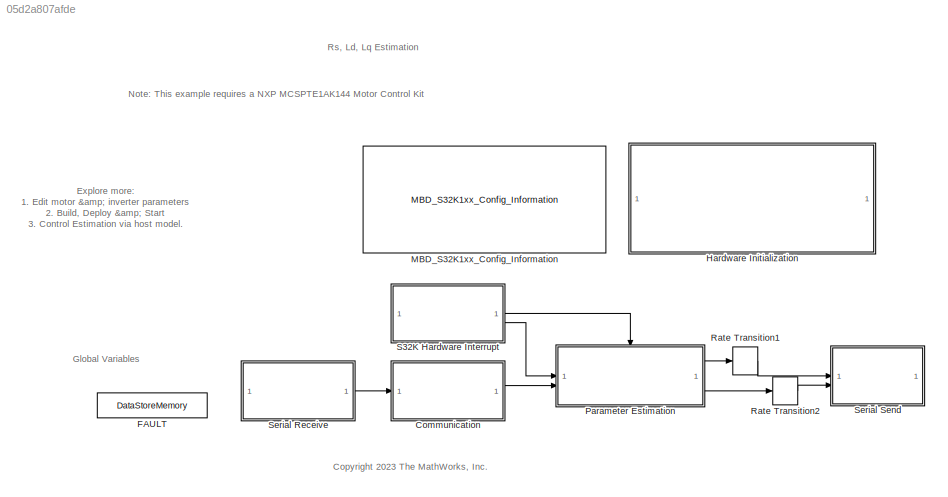
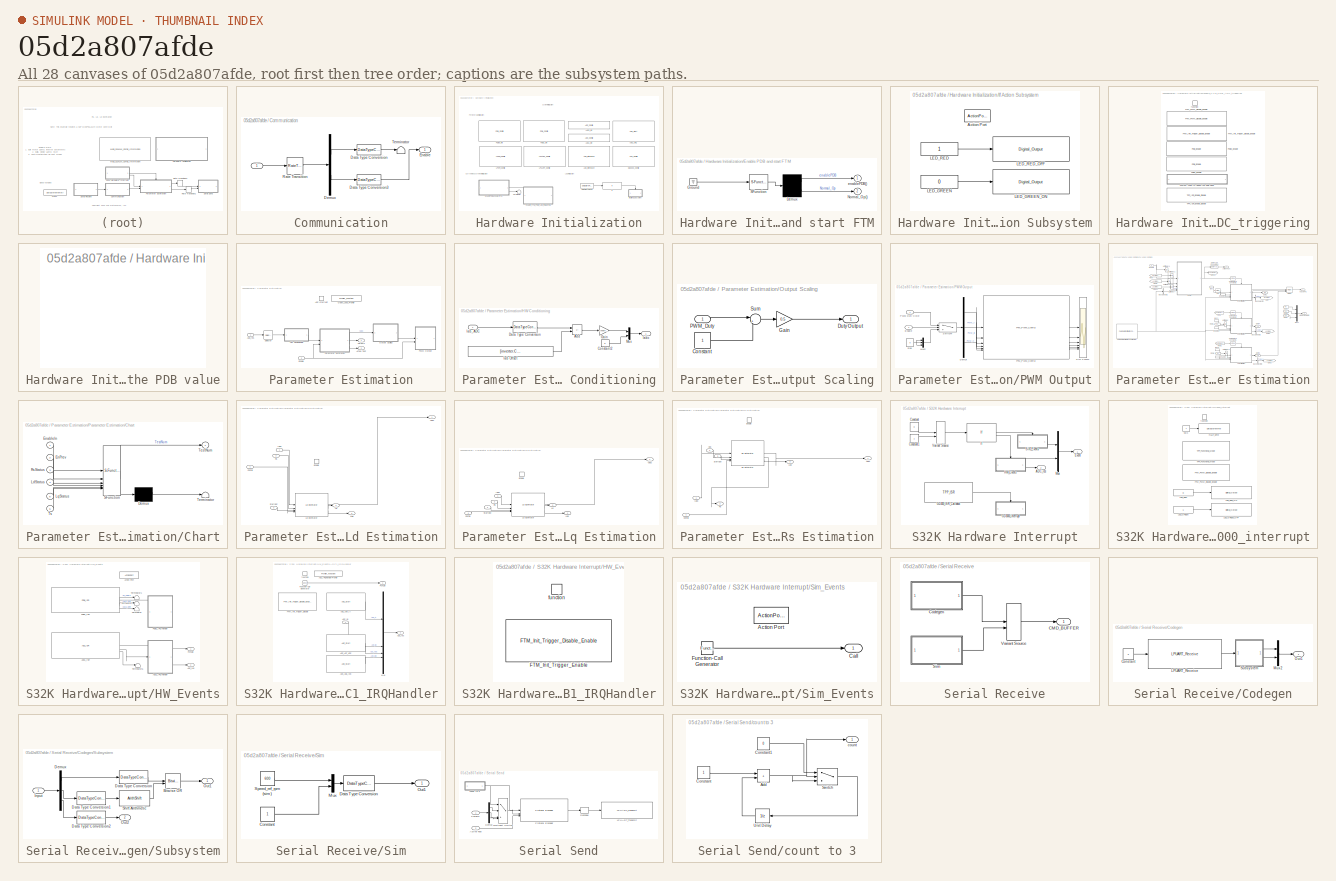
[diagram: thumbnail index - all 28 canvases of the model, root first then tree order]
MODEL slx_05d2a807afde
KIND model
CONFIG AbsTol = auto
CONFIG EnableMultiTasking = on
CONFIG FixedStep = auto
CONFIG InitFcn = mbd_s32k_consistency_checks(bdroot(gcs));
CONFIG MaxStep = auto
CONFIG MinStep = auto
CONFIG PreLoadFcn = mcb_pmsm_param_est_MCSPTE1AK144_data;
CONFIG RelTol = 1e-3
CONFIG SampleTimeConstraint = Unconstrained
CONFIG SolverName = FixedStepDiscrete
CONFIG StartTime = 0.0
CONFIG StopTime = 6
BLOCK [SubSystem] Communication
BLOCK [Inport] Communication/ 
BLOCK [DataTypeConversion] Communication/Data Type Conversion
  ConvertRealWorld = Stored Integer (SI)
  OutDataTypeStr = int16
  RndMeth = Simplest
  SaturateOnIntegerOverflow = off
BLOCK [DataTypeConversion] Communication/Data Type Conversion3
  OutDataTypeStr = boolean
  RndMeth = Simplest
  SaturateOnIntegerOverflow = off
BLOCK [Demux] Communication/Demux
  Outputs = 2
BLOCK [Outport] Communication/Enable
  VectorParamsAs1DForOutWhenUnconnected = off
BLOCK [RateTransition] Communication/Rate Transition
  Deterministic = off
  InitialCondition = [0 0]
  OutPortSampleTime = Ts
BLOCK [Terminator] Communication/Terminator
BLOCK [DataStoreMemory] FAULT
  DataStoreName = FAULT
  OutDataTypeStr = boolean
  ShowAdditionalParam = off
  WriteAfterReadMsg = warning
  WriteAfterWriteMsg = warning
BLOCK [SubSystem] Hardware Initialization
  Priority = 2
BLOCK [Reference] Hardware Initialization/ADC0_Init  REF=mbd_s32k1xx_ec_toolbox/Motor Control Blocks/ADC Blocks/ADC_Config
  Priority = 3
  SourceBlock = mbd_s32k1xx_ec_toolbox/Motor Control Blocks/ADC Blocks/ADC_Config
  SourceType = adc_s32k_config_block
BLOCK [Reference] Hardware Initialization/ADC1_IRQ  REF=mbd_s32k1xx_ec_toolbox/Motor Control Blocks/ADC Blocks/ADC_Start
  Priority = 5
  SourceBlock = mbd_s32k1xx_ec_toolbox/Motor Control Blocks/ADC Blocks/ADC_Start
  SourceType = adc_s32k_start_block
BLOCK [Reference] Hardware Initialization/ADC1_Init  REF=mbd_s32k1xx_ec_toolbox/Motor Control Blocks/ADC Blocks/ADC_Config
  Priority = 4
  SourceBlock = mbd_s32k1xx_ec_toolbox/Motor Control Blocks/ADC Blocks/ADC_Config
  SourceType = adc_s32k_config_block
BLOCK [Reference] Hardware Initialization/ADC_Interleave  REF=mbd_s32k1xx_ec_toolbox/Motor Control Blocks/ADC Blocks/ADC_Interleave
  SourceBlock = mbd_s32k1xx_ec_toolbox/Motor Control Blocks/ADC Blocks/ADC_Interleave
  SourceType = adc_s32k_interleave_block
BLOCK [DataStoreRead] Hardware Initialization/Data Store Read
  DataStoreName = FAULT
  IndexOptions = Index vector (dialog)
  Indices = 1
  OutputSizes = 1
BLOCK [SubSystem] Hardware Initialization/Enable PDB and start FTM
  ErrorFcn = Stateflow.Translate.translate
  PermitHierarchicalResolution = ExplicitOnly
  SFBlockType = Chart
  TreatAsAtomicUnit = on
BLOCK [Demux] Hardware Initialization/Enable PDB and start FTM/ Demux 
  Outputs = 2
BLOCK [Ground] Hardware Initialization/Enable PDB and start FTM/ Ground 
BLOCK [S-Function] Hardware Initialization/Enable PDB and start FTM/ SFunction 
  EnableBusSupport = on
  FunctionName = sf_sfun
  PortCounts = [1 1]
  SFcnIsStateOwnerBlock = off
  SFunctionDeploymentMode = off
  Tag = Stateflow S-Function 1
BLOCK [Outport] Hardware Initialization/Enable PDB and start FTM/Normal_Op()
  Port = 2
  VectorParamsAs1DForOutWhenUnconnected = off
BLOCK [Outport] Hardware Initialization/Enable PDB and start FTM/enablePDB()
  VectorParamsAs1DForOutWhenUnconnected = off
BLOCK [Reference] Hardware Initialization/GD3000_Config  REF=mbd_msd_ec_toolbox/TPP/TPP_Config
  Priority = 1
  SourceBlock = mbd_msd_ec_toolbox/TPP/TPP_Config
  SourceType = tpp_s32k_config
BLOCK [If] Hardware Initialization/If
  IfExpression = u1 == 0
  ShowElse = off
BLOCK [SubSystem] Hardware Initialization/If Action Subsystem
  TreatAsAtomicUnit = on
BLOCK [ActionPort] Hardware Initialization/If Action Subsystem/Action Port
  ActionPortLabel = if(u1 == 0)
BLOCK [Constant] Hardware Initialization/If Action Subsystem/LED_GREEN
  OutDataTypeStr = boolean
  SampleTime = -1
  Value = 0
BLOCK [Reference] Hardware Initialization/If Action Subsystem/LED_GREEN_ON  REF=mbd_s32k1xx_ec_toolbox/GPIO Blocks/Digital_Output
  SourceBlock = mbd_s32k1xx_ec_toolbox/GPIO Blocks/Digital_Output
  SourceType = gpio_s32k_output
BLOCK [Constant] Hardware Initialization/If Action Subsystem/LED_RED
  OutDataTypeStr = boolean
  SampleTime = -1
BLOCK [Reference] Hardware Initialization/If Action Subsystem/LED_RED_OFF  REF=mbd_s32k1xx_ec_toolbox/GPIO Blocks/Digital_Output
  SourceBlock = mbd_s32k1xx_ec_toolbox/GPIO Blocks/Digital_Output
  SourceType = gpio_s32k_output
BLOCK [Reference] Hardware Initialization/LPSPI_Config   REF=mbd_s32k1xx_ec_toolbox/Communication Blocks/SPI Blocks/LPSPI_Config

  SourceBlock = mbd_s32k1xx_ec_toolbox/Communication Blocks/SPI Blocks/LPSPI_Config
  SourceType = lpspi_s32k_config
BLOCK [Reference] Hardware Initialization/LPUART_Config  REF=mbd_s32k1xx_ec_toolbox/Communication Blocks/UART Blocks/LPUART_Config
  Priority = 1
  SourceBlock = mbd_s32k1xx_ec_toolbox/Communication Blocks/UART Blocks/LPUART_Config
  SourceType = lpuart_s32k_config
BLOCK [Reference] Hardware Initialization/PDB0_Init  REF=mbd_s32k1xx_ec_toolbox/Motor Control Blocks/PDB Blocks/PDB_Config
  Priority = 1
  SourceBlock = mbd_s32k1xx_ec_toolbox/Motor Control Blocks/PDB Blocks/PDB_Config
  SourceType = pdb_s32k_config_block
BLOCK [Reference] Hardware Initialization/PDB1_Init  REF=mbd_s32k1xx_ec_toolbox/Motor Control Blocks/PDB Blocks/PDB_Config
  Priority = 2
  SourceBlock = mbd_s32k1xx_ec_toolbox/Motor Control Blocks/PDB Blocks/PDB_Config
  SourceType = pdb_s32k_config_block
BLOCK [Terminator] Hardware Initialization/Terminator
BLOCK [SubSystem] Hardware Initialization/enable_FTM_PDB_ADC_triggering
  RTWSystemCode = Inline
  TreatAsAtomicUnit = on
BLOCK [SubSystem] Hardware Initialization/enable_FTM_PDB_ADC_triggering/Custom code to reload the PDB value
  CopyFcn = cccopyfcn(gcb)
  OpenFcn = ccopenfcn('System Outputs Function')
  Priority = 6
BLOCK [Reference] Hardware Initialization/enable_FTM_PDB_ADC_triggering/FTM_Init_Trigger_Disable_Enable  REF=mbd_s32k1xx_ec_toolbox/Motor Control Blocks/FTM Blocks/FTM_Init_Trigger_Disable_Enable
  Priority = 3
  SourceBlock = mbd_s32k1xx_ec_toolbox/Motor Control Blocks/FTM Blocks/FTM_Init_Trigger_Disable_Enable
  SourceType = FTM_s32k_init_disen
BLOCK [Reference] Hardware Initialization/enable_FTM_PDB_ADC_triggering/FTM_PWM_Disable_Enable  REF=mbd_s32k1xx_ec_toolbox/Motor Control Blocks/FTM Blocks/FTM_PWM_Disable_Enable
  Priority = 1
  SourceBlock = mbd_s32k1xx_ec_toolbox/Motor Control Blocks/FTM Blocks/FTM_PWM_Disable_Enable
  SourceType = FTM_s32k_pwm_disen
BLOCK [Reference] Hardware Initialization/enable_FTM_PDB_ADC_triggering/PDB0_Enable  REF=mbd_s32k1xx_ec_toolbox/Motor Control Blocks/PDB Blocks/PDB_Enable
  Priority = 4
  SourceBlock = mbd_s32k1xx_ec_toolbox/Motor Control Blocks/PDB Blocks/PDB_Enable
  SourceType = pdb_s32k_enable_block
BLOCK [Reference] Hardware Initialization/enable_FTM_PDB_ADC_triggering/PDB1_Enable  REF=mbd_s32k1xx_ec_toolbox/Motor Control Blocks/PDB Blocks/PDB_Enable
  Priority = 5
  SourceBlock = mbd_s32k1xx_ec_toolbox/Motor Control Blocks/PDB Blocks/PDB_Enable
  SourceType = pdb_s32k_enable_block
BLOCK [Reference] Hardware Initialization/enable_FTM_PDB_ADC_triggering/TPP_ISR_Enable_Disable  REF=mbd_msd_ec_toolbox/TPP/TPP_ISR_Enable_Disable
  Priority = 7
  SourceBlock = mbd_msd_ec_toolbox/TPP/TPP_ISR_Enable_Disable
  SourceType = tpp_s32k_int_en_dis
BLOCK [TriggerPort] Hardware Initialization/enable_FTM_PDB_ADC_triggering/function
  StatesWhenEnabling = held
  TriggerType = function-call
  VariantControl = (inherit)
BLOCK [Reference] MBD_S32K1xx_Config_Information  REF=mbd_s32k1xx_ec_toolbox/MBD_S32K1xx_Config_Information
  Priority = 1
  SourceBlock = mbd_s32k1xx_ec_toolbox/MBD_S32K1xx_Config_Information
  SourceType = MBDTBX_EC_S32K
BLOCK [SubSystem] Parameter Estimation
  RTWSystemCode = Nonreusable function
BLOCK [TriggerPort] Parameter Estimation/ADC Interrupt
  StatesWhenEnabling = held
  TriggerType = function-call
  VariantControl = Variant
BLOCK [Inport] Parameter Estimation/ADC_res
BLOCK [Outport] Parameter Estimation/Active Test
  Port = 2
BLOCK [Inport] Parameter Estimation/Enable
  Port = 2
BLOCK [SubSystem] Parameter Estimation/HW Conditioning
BLOCK [Sum] Parameter Estimation/HW Conditioning/Add
  IconShape = rectangular
  Inputs = +-
  OutDataTypeStr = Inherit: Same as first input
  RndMeth = Simplest
BLOCK [Constant] Parameter Estimation/HW Conditioning/Constant2
  OutDataTypeStr = single
  Value = 0
BLOCK [DataTypeConversion] Parameter Estimation/HW Conditioning/Data Type Conversion
  OutDataTypeStr = single
  RndMeth = Simplest
  SaturateOnIntegerOverflow = off
BLOCK [Gain] Parameter Estimation/HW Conditioning/Gain
  Gain = -inverter.ISenseMax/2048
  OutDataTypeStr = Inherit: Same as input
  RndMeth = Simplest
BLOCK [Constant] Parameter Estimation/HW Conditioning/Iab Offset
  OutDataTypeStr = int32
  Value = [inverter.CtSensAOffset inverter.CtSensBOffset]
BLOCK [Inport] Parameter Estimation/HW Conditioning/Iab_ADC
BLOCK [Outport] Parameter Estimation/HW Conditioning/Iabc
BLOCK [Mux] Parameter Estimation/HW Conditioning/Mux
  DisplayOption = bar
  Inputs = 2
BLOCK [Reference] Parameter Estimation/Open_Loop_Profiler  REF=mbd_s32k1xx_ec_toolbox/Utility Blocks/Profiler_Function
  SourceBlock = mbd_s32k1xx_ec_toolbox/Utility Blocks/Profiler_Function
  SourceType = profiler_s32k_func
BLOCK [SubSystem] Parameter Estimation/Output Scaling
BLOCK [Constant] Parameter Estimation/Output Scaling/Constant
  OutDataTypeStr = dataType
BLOCK [Outport] Parameter Estimation/Output Scaling/Duty Output
BLOCK [Gain] Parameter Estimation/Output Scaling/Gain
  Gain = 0.5
  OutDataTypeStr = Inherit: Same as input
  RndMeth = Simplest
BLOCK [Inport] Parameter Estimation/Output Scaling/PWM_Duty
BLOCK [Sum] Parameter Estimation/Output Scaling/Sum
  AccumDataTypeStr = Inherit: Same as first input
  Inputs = |++
  OutDataTypeStr = Inherit: Same as first input
  RndMeth = Simplest
BLOCK [SubSystem] Parameter Estimation/PWM Output
BLOCK [Demux] Parameter Estimation/PWM Output/Demux
  Outputs = 3
BLOCK [Inport] Parameter Estimation/PWM Output/Enable
  Port = 2
BLOCK [Reference] Parameter Estimation/PWM Output/FTM_PWM_Config  REF=mbd_s32k1xx_ec_toolbox/Motor Control Blocks/FTM Blocks/FTM_PWM_Config
  SourceBlock = mbd_s32k1xx_ec_toolbox/Motor Control Blocks/FTM Blocks/FTM_PWM_Config
  SourceType = FTM_s32k_pwm_config_block
BLOCK [Mux] Parameter Estimation/PWM Output/Mux2
  DisplayOption = bar
  Inputs = 3
BLOCK [Inport] Parameter Estimation/PWM Output/PWM Duty Cycle
BLOCK [Scope] Parameter Estimation/PWM Output/Sim PWMs
  Floating = off
  NumInputPorts = 6
  ScopeSpecificationString = Simulink.scopes.TimeScopeBlockCfg('CurrentConfiguration', extmgr.ConfigurationSet(extmgr.Configuration('Core','General UI',true),extmgr.Configuration('Core','Source UI',true),extmgr.Configuration('Sources','WiredSimulink',true,'DataLoggingVariableName','ScopeData6'),extmgr.Configuration('Visuals','Time Domain',true,'SerializedDisplays',{struct('MinYLimReal','-0.07187','MaxYLimReal','0.64687','YLab...<+1547ch>
BLOCK [Switch] Parameter Estimation/PWM Output/Switch4
  InputSameDT = off
  RndMeth = Simplest
  SaturateOnIntegerOverflow = off
  Threshold = 0.5
BLOCK [Constant] Parameter Estimation/PWM Output/stop
  OutDataTypeStr = dataType
  Value = 0
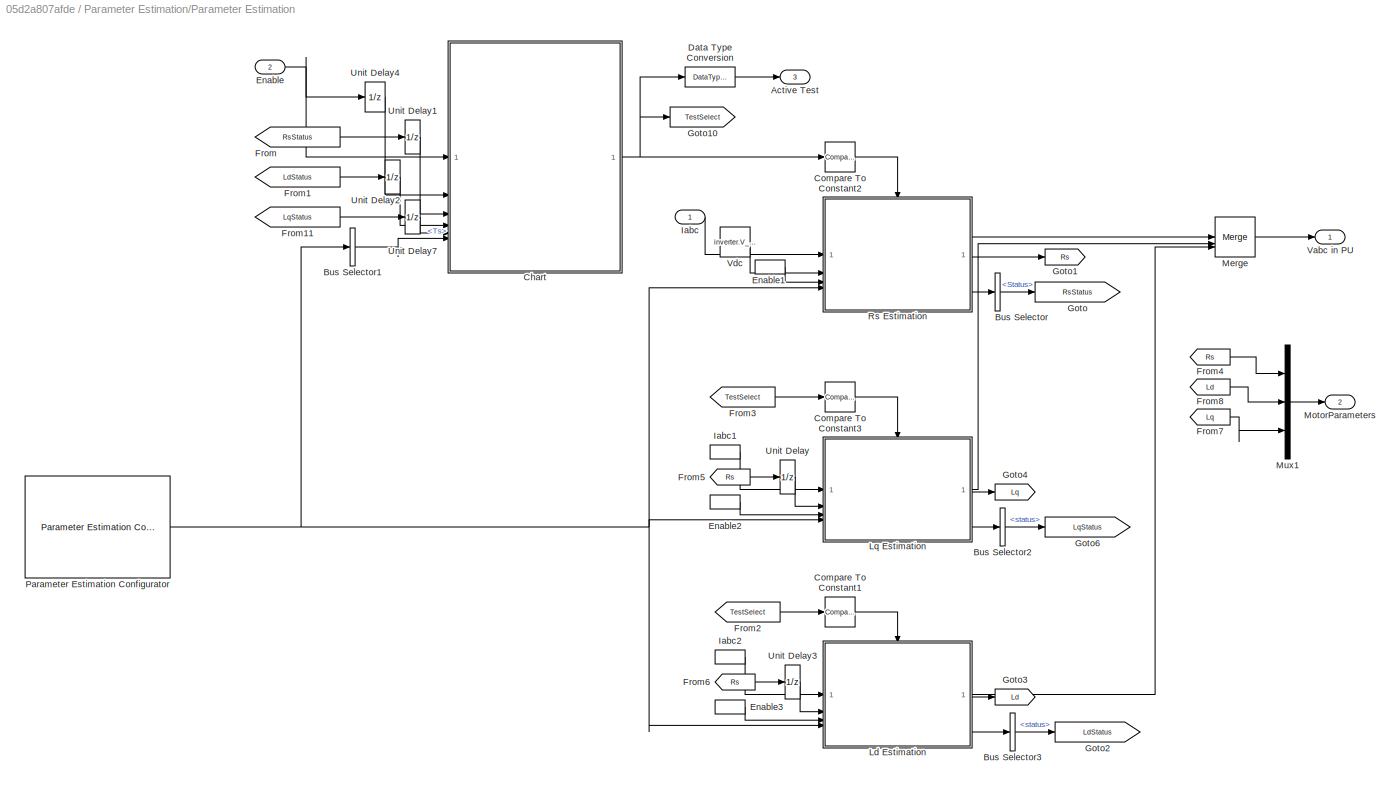
BLOCK [SubSystem] Parameter Estimation/Parameter Estimation
BLOCK [Outport] Parameter Estimation/Parameter Estimation/Active Test
  Port = 3
BLOCK [BusSelector] Parameter Estimation/Parameter Estimation/Bus Selector
  OutputSignals = Status
BLOCK [BusSelector] Parameter Estimation/Parameter Estimation/Bus Selector1
  OutputSignals = Ts
BLOCK [BusSelector] Parameter Estimation/Parameter Estimation/Bus Selector2
  OutputSignals = status
BLOCK [BusSelector] Parameter Estimation/Parameter Estimation/Bus Selector3
  OutputSignals = status
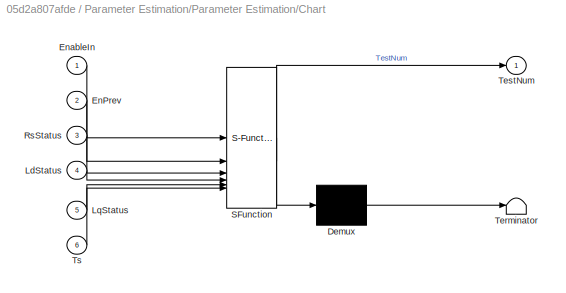
BLOCK [SubSystem] Parameter Estimation/Parameter Estimation/Chart
  ErrorFcn = Stateflow.Translate.translate
  PermitHierarchicalResolution = ExplicitOnly
  SFBlockType = Chart
  TreatAsAtomicUnit = on
BLOCK [Demux] Parameter Estimation/Parameter Estimation/Chart/ Demux 
  Outputs = 1
BLOCK [S-Function] Parameter Estimation/Parameter Estimation/Chart/ SFunction 
  EnableBusSupport = on
  FunctionName = sf_sfun
  PortCounts = [6 2]
  SFcnIsStateOwnerBlock = off
  SFunctionDeploymentMode = off
  Tag = Stateflow S-Function 3
BLOCK [Terminator] Parameter Estimation/Parameter Estimation/Chart/ Terminator 
BLOCK [Inport] Parameter Estimation/Parameter Estimation/Chart/EnPrev
  Port = 2
BLOCK [Inport] Parameter Estimation/Parameter Estimation/Chart/EnableIn
BLOCK [Inport] Parameter Estimation/Parameter Estimation/Chart/LdStatus
  Port = 4
BLOCK [Inport] Parameter Estimation/Parameter Estimation/Chart/LqStatus
  Port = 5
BLOCK [Inport] Parameter Estimation/Parameter Estimation/Chart/RsStatus
  Port = 3
BLOCK [Outport] Parameter Estimation/Parameter Estimation/Chart/TestNum
BLOCK [Inport] Parameter Estimation/Parameter Estimation/Chart/Ts
  Port = 6
BLOCK [Reference] Parameter Estimation/Parameter Estimation/Compare To Constant1  REF=simulink/Logic and Bit
Operations/Compare
To Constant
  SourceBlock = simulink/Logic and Bit\nOperations/Compare\nTo Constant
  SourceType = Compare To Constant
BLOCK [Reference] Parameter Estimation/Parameter Estimation/Compare To Constant2  REF=simulink/Logic and Bit
Operations/Compare
To Constant
  SourceBlock = simulink/Logic and Bit\nOperations/Compare\nTo Constant
  SourceType = Compare To Constant
BLOCK [Reference] Parameter Estimation/Parameter Estimation/Compare To Constant3  REF=simulink/Logic and Bit
Operations/Compare
To Constant
  SourceBlock = simulink/Logic and Bit\nOperations/Compare\nTo Constant
  SourceType = Compare To Constant
BLOCK [DataTypeConversion] Parameter Estimation/Parameter Estimation/Data Type Conversion
  OutDataTypeStr = uint8
  RndMeth = Simplest
  SaturateOnIntegerOverflow = off
BLOCK [Inport] Parameter Estimation/Parameter Estimation/Enable
  Port = 2
BLOCK [InportShadow] Parameter Estimation/Parameter Estimation/Enable1
  Port = 2
BLOCK [InportShadow] Parameter Estimation/Parameter Estimation/Enable2
  Port = 2
BLOCK [InportShadow] Parameter Estimation/Parameter Estimation/Enable3
  Port = 2
BLOCK [From] Parameter Estimation/Parameter Estimation/From
  GotoTag = RsStatus
BLOCK [From] Parameter Estimation/Parameter Estimation/From1
  GotoTag = LdStatus
BLOCK [From] Parameter Estimation/Parameter Estimation/From11
  GotoTag = LqStatus
BLOCK [From] Parameter Estimation/Parameter Estimation/From2
  GotoTag = TestSelect
BLOCK [From] Parameter Estimation/Parameter Estimation/From3
  GotoTag = TestSelect
BLOCK [From] Parameter Estimation/Parameter Estimation/From4
  GotoTag = Rs
BLOCK [From] Parameter Estimation/Parameter Estimation/From5
  GotoTag = Rs
BLOCK [From] Parameter Estimation/Parameter Estimation/From6
  GotoTag = Rs
BLOCK [From] Parameter Estimation/Parameter Estimation/From7
  GotoTag = Lq
BLOCK [From] Parameter Estimation/Parameter Estimation/From8
  GotoTag = Ld
BLOCK [Goto] Parameter Estimation/Parameter Estimation/Goto
  GotoTag = RsStatus
BLOCK [Goto] Parameter Estimation/Parameter Estimation/Goto1
  GotoTag = Rs
BLOCK [Goto] Parameter Estimation/Parameter Estimation/Goto10
  GotoTag = TestSelect
BLOCK [Goto] Parameter Estimation/Parameter Estimation/Goto2
  GotoTag = LdStatus
BLOCK [Goto] Parameter Estimation/Parameter Estimation/Goto3
  GotoTag = Ld
BLOCK [Goto] Parameter Estimation/Parameter Estimation/Goto4
  GotoTag = Lq
BLOCK [Goto] Parameter Estimation/Parameter Estimation/Goto6
  GotoTag = LqStatus
BLOCK [Inport] Parameter Estimation/Parameter Estimation/Iabc
BLOCK [InportShadow] Parameter Estimation/Parameter Estimation/Iabc1
BLOCK [InportShadow] Parameter Estimation/Parameter Estimation/Iabc2
BLOCK [SubSystem] Parameter Estimation/Parameter Estimation/Ld Estimation
BLOCK [Inport] Parameter Estimation/Parameter Estimation/Ld Estimation/Config
  Port = 4
BLOCK [EnablePort] Parameter Estimation/Parameter Estimation/Ld Estimation/Enable
  StatesWhenEnabling = reset
BLOCK [Inport] Parameter Estimation/Parameter Estimation/Ld Estimation/Iabc
BLOCK [Outport] Parameter Estimation/Parameter Estimation/Ld Estimation/Ld
  Port = 2
BLOCK [Reference] Parameter Estimation/Parameter Estimation/Ld Estimation/Ld Estimator  REF=mcbpmsmparamestlib/Ld Estimator
  SourceBlock = mcbpmsmparamestlib/Ld Estimator
  SourceType = Ld Estimator
BLOCK [Outport] Parameter Estimation/Parameter Estimation/Ld Estimation/Log
  Port = 3
BLOCK [Inport] Parameter Estimation/Parameter Estimation/Ld Estimation/Rs
  Port = 2
BLOCK [Inport] Parameter Estimation/Parameter Estimation/Ld Estimation/StartEst
  Port = 3
BLOCK [Outport] Parameter Estimation/Parameter Estimation/Ld Estimation/Vabc
BLOCK [SubSystem] Parameter Estimation/Parameter Estimation/Lq Estimation
BLOCK [Inport] Parameter Estimation/Parameter Estimation/Lq Estimation/Config
  Port = 4
BLOCK [EnablePort] Parameter Estimation/Parameter Estimation/Lq Estimation/Enable
  StatesWhenEnabling = reset
BLOCK [Inport] Parameter Estimation/Parameter Estimation/Lq Estimation/Iabc
BLOCK [Outport] Parameter Estimation/Parameter Estimation/Lq Estimation/Log
  Port = 3
BLOCK [Outport] Parameter Estimation/Parameter Estimation/Lq Estimation/Lq
  Port = 2
BLOCK [Reference] Parameter Estimation/Parameter Estimation/Lq Estimation/Lq Estimator  REF=mcbpmsmparamestlib/Lq Estimator
  LibrarySourceBlock = mcblib/Parameter Estimation/PMSM Parameter Estimation/Lq Estimator
  SourceBlock = mcbpmsmparamestlib/Lq Estimator
  SourceType = Lq Estimator
BLOCK [Inport] Parameter Estimation/Parameter Estimation/Lq Estimation/Rs
  Port = 2
BLOCK [Inport] Parameter Estimation/Parameter Estimation/Lq Estimation/StartEst
  Port = 3
BLOCK [Outport] Parameter Estimation/Parameter Estimation/Lq Estimation/Vabc
BLOCK [Merge] Parameter Estimation/Parameter Estimation/Merge
  Inputs = 3
BLOCK [Outport] Parameter Estimation/Parameter Estimation/MotorParameters
  Port = 2
BLOCK [Mux] Parameter Estimation/Parameter Estimation/Mux1
  DisplayOption = bar
  Inputs = 3
BLOCK [Reference] Parameter Estimation/Parameter Estimation/Parameter Estimation Configurator  REF=mcbpmsmparamestlib/Parameter Estimation Configurator
  LibrarySourceBlock = mcblib/Parameter Estimation/PMSM Parameter Estimation/Parameter Estimation Configurator
  SourceBlock = mcbpmsmparamestlib/Parameter Estimation Configurator
  SourceType = PMSM Parameter Estimation Configurator
BLOCK [SubSystem] Parameter Estimation/Parameter Estimation/Rs Estimation
BLOCK [Inport] Parameter Estimation/Parameter Estimation/Rs Estimation/Config
  Port = 4
BLOCK [EnablePort] Parameter Estimation/Parameter Estimation/Rs Estimation/Enable
  StatesWhenEnabling = reset
BLOCK [Inport] Parameter Estimation/Parameter Estimation/Rs Estimation/Iabc
BLOCK [Outport] Parameter Estimation/Parameter Estimation/Rs Estimation/Log
  Port = 3
BLOCK [Outport] Parameter Estimation/Parameter Estimation/Rs Estimation/Rs
  Port = 2
BLOCK [Reference] Parameter Estimation/Parameter Estimation/Rs Estimation/Rs Estimator  REF=mcbpmsmparamestlib/Rs Estimator
  SourceBlock = mcbpmsmparamestlib/Rs Estimator
  SourceType = Rs Estimator
BLOCK [Inport] Parameter Estimation/Parameter Estimation/Rs Estimation/StartEst
  Port = 3
BLOCK [Outport] Parameter Estimation/Parameter Estimation/Rs Estimation/Vabc
BLOCK [Inport] Parameter Estimation/Parameter Estimation/Rs Estimation/Vdc
  Port = 2
BLOCK [UnitDelay] Parameter Estimation/Parameter Estimation/Unit Delay
  HasFrameUpgradeWarning = on
  SampleTime = -1
BLOCK [UnitDelay] Parameter Estimation/Parameter Estimation/Unit Delay1
  HasFrameUpgradeWarning = on
  SampleTime = -1
BLOCK [UnitDelay] Parameter Estimation/Parameter Estimation/Unit Delay2
  HasFrameUpgradeWarning = on
  SampleTime = -1
BLOCK [UnitDelay] Parameter Estimation/Parameter Estimation/Unit Delay3
  HasFrameUpgradeWarning = on
  SampleTime = -1
BLOCK [UnitDelay] Parameter Estimation/Parameter Estimation/Unit Delay4
  HasFrameUpgradeWarning = on
  SampleTime = -1
BLOCK [UnitDelay] Parameter Estimation/Parameter Estimation/Unit Delay7
  HasFrameUpgradeWarning = on
  SampleTime = -1
BLOCK [Outport] Parameter Estimation/Parameter Estimation/Vabc in PU
  VectorParamsAs1DForOutWhenUnconnected = off
BLOCK [Constant] Parameter Estimation/Parameter Estimation/Vdc
  OutDataTypeStr = single
  Value = inverter.V_dc
BLOCK [Outport] Parameter Estimation/Params
BLOCK [Selector] Parameter Estimation/Selector
  IndexOptions = Index vector (dialog)
  Indices = [1 2]
  InputPortWidth = 4
  OutputSizes = 1
BLOCK [RateTransition] Rate Transition1
  Deterministic = off
  Integrity = off
BLOCK [RateTransition] Rate Transition2
  Deterministic = off
  Integrity = off
BLOCK [SubSystem] S32K Hardware Interrupt
BLOCK [Outport] S32K Hardware Interrupt/ADC_res
  Port = 2
BLOCK [Constant] S32K Hardware Interrupt/Constant
  OutDataTypeStr = Inherit: Inherit via back propagation
  SampleTime = -1
  Value = 0
BLOCK [Constant] S32K Hardware Interrupt/Constant1
  OutDataTypeStr = Inherit: Inherit via back propagation
  SampleTime = -1
BLOCK [Outport] S32K Hardware Interrupt/Event
BLOCK [SubSystem] S32K Hardware Interrupt/GD3000_interrupt
  TreatAsAtomicUnit = on
BLOCK [DataStoreWrite] S32K Hardware Interrupt/GD3000_interrupt/FAULT_write
  DataStoreName = FAULT
  IndexOptions = Index vector (dialog)
  Indices = 1
  OutputSizes = 1
BLOCK [Reference] S32K Hardware Interrupt/GD3000_interrupt/FTM_PWM_Disable_Enable  REF=mbd_s32k1xx_ec_toolbox/Motor Control Blocks/FTM Blocks/FTM_PWM_Disable_Enable
  SourceBlock = mbd_s32k1xx_ec_toolbox/Motor Control Blocks/FTM Blocks/FTM_PWM_Disable_Enable
  SourceType = FTM_s32k_pwm_disen
BLOCK [Constant] S32K Hardware Interrupt/GD3000_interrupt/LED_GREEN
  OutDataTypeStr = boolean
  SampleTime = -1
BLOCK [Reference] S32K Hardware Interrupt/GD3000_interrupt/LED_GREEN_OFF  REF=mbd_s32k1xx_ec_toolbox/GPIO Blocks/Digital_Output
  SourceBlock = mbd_s32k1xx_ec_toolbox/GPIO Blocks/Digital_Output
  SourceType = gpio_s32k_output
BLOCK [Constant] S32K Hardware Interrupt/GD3000_interrupt/LED_RED
  OutDataTypeStr = boolean
  SampleTime = -1
  Value = 0
BLOCK [Reference] S32K Hardware Interrupt/GD3000_interrupt/LED_RED_ON  REF=mbd_s32k1xx_ec_toolbox/GPIO Blocks/Digital_Output
  SourceBlock = mbd_s32k1xx_ec_toolbox/GPIO Blocks/Digital_Output
  SourceType = gpio_s32k_output
BLOCK [Constant] S32K Hardware Interrupt/GD3000_interrupt/NOK
  OutDataTypeStr = boolean
BLOCK [Reference] S32K Hardware Interrupt/GD3000_interrupt/TPP_Functional_Mode  REF=mbd_msd_ec_toolbox/TPP/TPP_Functional_Mode
  SourceBlock = mbd_msd_ec_toolbox/TPP/TPP_Functional_Mode
  SourceType = TPP_functional_mode
BLOCK [TriggerPort] S32K Hardware Interrupt/GD3000_interrupt/function
  StatesWhenEnabling = held
  TriggerType = function-call
  VariantControl = Variant
BLOCK [Reference] S32K Hardware Interrupt/GD300_ISR_Callback   REF=mbd_msd_ec_toolbox/TPP/TPP_ISR
  SourceBlock = mbd_msd_ec_toolbox/TPP/TPP_ISR
  SourceType = tpp_s32k_isr
BLOCK [SubSystem] S32K Hardware Interrupt/HW_Events
  TreatAsAtomicUnit = on
BLOCK [SubSystem] S32K Hardware Interrupt/HW_Events/ADC1_IRQHandler
  TreatAsAtomicUnit = on
BLOCK [Reference] S32K Hardware Interrupt/HW_Events/ADC1_IRQHandler/ADC_AD4_IA  REF=mbd_s32k1xx_ec_toolbox/Motor Control Blocks/ADC Blocks/ADC_Start
  Priority = 2
  SourceBlock = mbd_s32k1xx_ec_toolbox/Motor Control Blocks/ADC Blocks/ADC_Start
  SourceType = adc_s32k_start_block
BLOCK [Reference] S32K Hardware Interrupt/HW_Events/ADC1_IRQHandler/ADC_AD6_IDC  REF=mbd_s32k1xx_ec_toolbox/Motor Control Blocks/ADC Blocks/ADC_Start
  Priority = 4
  SourceBlock = mbd_s32k1xx_ec_toolbox/Motor Control Blocks/ADC Blocks/ADC_Start
  SourceType = adc_s32k_start_block
BLOCK [Reference] S32K Hardware Interrupt/HW_Events/ADC1_IRQHandler/ADC_AD7_VDC  REF=mbd_s32k1xx_ec_toolbox/Motor Control Blocks/ADC Blocks/ADC_Start
  Priority = 3
  SourceBlock = mbd_s32k1xx_ec_toolbox/Motor Control Blocks/ADC Blocks/ADC_Start
  SourceType = adc_s32k_start_block
BLOCK [Inport] S32K Hardware Interrupt/HW_Events/ADC1_IRQHandler/ADC_IB
BLOCK [Reference] S32K Hardware Interrupt/HW_Events/ADC1_IRQHandler/ADC_IRQHandlerProfiler  REF=mbd_s32k1xx_ec_toolbox/Utility Blocks/Profiler_Function
  SourceBlock = mbd_s32k1xx_ec_toolbox/Utility Blocks/Profiler_Function
  SourceType = profiler_s32k_func
BLOCK [Outport] S32K Hardware Interrupt/HW_Events/ADC1_IRQHandler/ADC_res
  Port = 2
  VectorParamsAs1DForOutWhenUnconnected = off
BLOCK [Reference] S32K Hardware Interrupt/HW_Events/ADC1_IRQHandler/FTM_Init_Trigger_Disable  REF=mbd_s32k1xx_ec_toolbox/Motor Control Blocks/FTM Blocks/FTM_Init_Trigger_Disable_Enable
  Priority = 1
  SourceBlock = mbd_s32k1xx_ec_toolbox/Motor Control Blocks/FTM Blocks/FTM_Init_Trigger_Disable_Enable
  SourceType = FTM_s32k_init_disen
BLOCK [Outport] S32K Hardware Interrupt/HW_Events/ADC1_IRQHandler/FcnCall
  VectorParamsAs1DForOutWhenUnconnected = off
BLOCK [Reference] S32K Hardware Interrupt/HW_Events/ADC1_IRQHandler/Function-Call Generator  REF=simulink/Ports &
Subsystems/Function-Call
Generator
  SourceBlock = simulink/Ports &\nSubsystems/Function-Call\nGenerator
  SourceType = Function-Call Generator
BLOCK [Mux] S32K Hardware Interrupt/HW_Events/ADC1_IRQHandler/Mux
  DisplayOption = bar
BLOCK [TriggerPort] S32K Hardware Interrupt/HW_Events/ADC1_IRQHandler/function
  StatesWhenEnabling = held
  TriggerType = function-call
  VariantControl = (inherit)
BLOCK [Reference] S32K Hardware Interrupt/HW_Events/ADC1_ISR  REF=mbd_s32k1xx_ec_toolbox/Motor Control Blocks/ADC Blocks/ADC_ISR
  SourceBlock = mbd_s32k1xx_ec_toolbox/Motor Control Blocks/ADC Blocks/ADC_ISR
  SourceType = adc_s32k_isr_block
BLOCK [Outport] S32K Hardware Interrupt/HW_Events/ADC_res
  Port = 2
  VectorParamsAs1DForOutWhenUnconnected = off
BLOCK [ActionPort] S32K Hardware Interrupt/HW_Events/Action Port
  ActionPortLabel = elseif(u1 == 1)
BLOCK [Outport] S32K Hardware Interrupt/HW_Events/FcnCall
  VectorParamsAs1DForOutWhenUnconnected = off
BLOCK [SubSystem] S32K Hardware Interrupt/HW_Events/PDB1_IRQHandler
  TreatAsAtomicUnit = on
BLOCK [Reference] S32K Hardware Interrupt/HW_Events/PDB1_IRQHandler/FTM_Init_Trigger_Enable  REF=mbd_s32k1xx_ec_toolbox/Motor Control Blocks/FTM Blocks/FTM_Init_Trigger_Disable_Enable
  SourceBlock = mbd_s32k1xx_ec_toolbox/Motor Control Blocks/FTM Blocks/FTM_Init_Trigger_Disable_Enable
  SourceType = FTM_s32k_init_disen
BLOCK [TriggerPort] S32K Hardware Interrupt/HW_Events/PDB1_IRQHandler/function
  StatesWhenEnabling = held
  TriggerType = function-call
  VariantControl = (inherit)
BLOCK [Reference] S32K Hardware Interrupt/HW_Events/PDB1_ISR  REF=mbd_s32k1xx_ec_toolbox/Motor Control Blocks/PDB Blocks/PDB_ISR
  Priority = 8
  SourceBlock = mbd_s32k1xx_ec_toolbox/Motor Control Blocks/PDB Blocks/PDB_ISR
  SourceType = pdb_s32k_isr_block
BLOCK [Terminator] S32K Hardware Interrupt/HW_Events/Terminator
BLOCK [Terminator] S32K Hardware Interrupt/HW_Events/Terminator1
BLOCK [Terminator] S32K Hardware Interrupt/HW_Events/Terminator2
BLOCK [Terminator] S32K Hardware Interrupt/HW_Events/Terminator6
BLOCK [If] S32K Hardware Interrupt/If
  ElseIfExpressions = u1 == 1
  IfExpression = u1 == 0
  ShowElse = off
BLOCK [Mux] S32K Hardware Interrupt/Mux
  DisplayOption = bar
  Inputs = 2
BLOCK [SubSystem] S32K Hardware Interrupt/Sim_Events
  TreatAsAtomicUnit = on
BLOCK [ActionPort] S32K Hardware Interrupt/Sim_Events/Action Port
  ActionPortLabel = if(u1 == 0)
BLOCK [Outport] S32K Hardware Interrupt/Sim_Events/Call
  VectorParamsAs1DForOutWhenUnconnected = off
BLOCK [Reference] S32K Hardware Interrupt/Sim_Events/Function-Call Generator  REF=simulink/Ports &
Subsystems/Function-Call
Generator
  SourceBlock = simulink/Ports &\nSubsystems/Function-Call\nGenerator
  SourceType = Function-Call Generator
BLOCK [VariantSource] S32K Hardware Interrupt/Variant Source
  VariantControlMode = sim codegen switching
BLOCK [SubSystem] Serial Receive
  RTWMemSecFuncExecute = code_ramfuncs
  RTWSystemCode = Nonreusable function
  SystemSampleTime = 1e-3
BLOCK [Outport] Serial Receive/CMD_BUFFER
  InitialOutput = [16384 0]
  VectorParamsAs1DForOutWhenUnconnected = off
BLOCK [SubSystem] Serial Receive/Codegen
BLOCK [Constant] Serial Receive/Codegen/Constant
  OutDataTypeStr = Inherit: Inherit via back propagation
  Value = 3
BLOCK [Reference] Serial Receive/Codegen/LPUART_Receive  REF=mbd_s32k1xx_ec_toolbox/Communication Blocks/UART Blocks/LPUART_Receive
  SourceBlock = mbd_s32k1xx_ec_toolbox/Communication Blocks/UART Blocks/LPUART_Receive
  SourceType = lpuart_s32k_receive
BLOCK [Mux] Serial Receive/Codegen/Mux2
  DisplayOption = bar
  Inputs = 2
BLOCK [Outport] Serial Receive/Codegen/Out1
BLOCK [SubSystem] Serial Receive/Codegen/Subsystem
BLOCK [Reference] Serial Receive/Codegen/Subsystem/Bitwise OR  REF=simulink/Logic and Bit
Operations/Bitwise
Operator
  SourceBlock = simulink/Logic and Bit\nOperations/Bitwise\nOperator
  SourceType = Bitwise Operator
BLOCK [DataTypeConversion] Serial Receive/Codegen/Subsystem/Data Type Conversion
  ConvertRealWorld = Stored Integer (SI)
  OutDataTypeStr = uint16
  RndMeth = Simplest
  SaturateOnIntegerOverflow = off
BLOCK [DataTypeConversion] Serial Receive/Codegen/Subsystem/Data Type Conversion1
  ConvertRealWorld = Stored Integer (SI)
  OutDataTypeStr = uint16
  RndMeth = Simplest
  SaturateOnIntegerOverflow = off
BLOCK [DataTypeConversion] Serial Receive/Codegen/Subsystem/Data Type Conversion2
  ConvertRealWorld = Stored Integer (SI)
  OutDataTypeStr = uint16
  RndMeth = Simplest
  SaturateOnIntegerOverflow = off
BLOCK [Demux] Serial Receive/Codegen/Subsystem/Demux
  Outputs = 3
BLOCK [Inport] Serial Receive/Codegen/Subsystem/Input
  PortDimensions = 3
BLOCK [Outport] Serial Receive/Codegen/Subsystem/Out1
BLOCK [Outport] Serial Receive/Codegen/Subsystem/Out2
  Port = 2
BLOCK [ArithShift] Serial Receive/Codegen/Subsystem/Shift Arithmetic
  BitShiftDirection = Left
  BitShiftNumber = 8
  InputPortMap = u0
BLOCK [SubSystem] Serial Receive/Sim
BLOCK [Constant] Serial Receive/Sim/Constant
  OutDataTypeStr = dataType
BLOCK [DataTypeConversion] Serial Receive/Sim/Data Type Conversion
  OutDataTypeStr = int16
  RndMeth = Simplest
  SaturateOnIntegerOverflow = off
BLOCK [Mux] Serial Receive/Sim/Mux
  DisplayOption = bar
  Inputs = 2
BLOCK [Outport] Serial Receive/Sim/Out1
BLOCK [Constant] Serial Receive/Sim/Speed_ref_rpm (sim)
  OutDataTypeStr = dataType
  SampleTime = -1
  Value = 600
BLOCK [VariantSource] Serial Receive/Variant Source
  VariantControlMode = sim codegen switching
BLOCK [SubSystem] Serial Send
  SystemSampleTime = Ts_uart
  TreatAsAtomicUnit = on
BLOCK [Inport] Serial Send/Active Test
  Port = 2
BLOCK [Demux] Serial Send/Demux
  Outputs = 3
BLOCK [Reference] Serial Send/LPUART_Transmit  REF=mbd_s32k1xx_ec_toolbox/Communication Blocks/UART Blocks/LPUART_Transmit
  Priority = 2
  SourceBlock = mbd_s32k1xx_ec_toolbox/Communication Blocks/UART Blocks/LPUART_Transmit
  SourceType = lpuart_s32k_transmit
BLOCK [MultiPortSwitch] Serial Send/Multiport Switch
  DiagnosticForDefault = Warning
  InputSameDT = off
  OutDataTypeStr = dataType
  RndMeth = Simplest
  SaturateOnIntegerOverflow = off
BLOCK [Inport] Serial Send/Params
BLOCK [Reference] Serial Send/Protocol Encoder  REF=embeddedblockslib/Protocol Encoder
  LibrarySourceBlock = c2000lib/Target Communication/Protocol Encoder
  SourceBlock = embeddedblockslib/Protocol Encoder
  SourceType = matlabshared.embedded_utilities.blocks.ProtocolEncoderBlock
BLOCK [Reshape] Serial Send/Reshape
BLOCK [SubSystem] Serial Send/count to 3
BLOCK [Sum] Serial Send/count to 3/Add
  IconShape = rectangular
  OutDataTypeStr = Inherit: Same as first input
BLOCK [Constant] Serial Send/count to 3/Constant
  OutDataTypeStr = uint8
  SampleTime = -1
BLOCK [Constant] Serial Send/count to 3/Constant1
  OutDataTypeStr = uint8
  Value = 0
BLOCK [Switch] Serial Send/count to 3/Switch
  InputSameDT = off
  SaturateOnIntegerOverflow = off
  Threshold = 3
BLOCK [UnitDelay] Serial Send/count to 3/Unit Delay
  HasFrameUpgradeWarning = on
  SampleTime = -1
BLOCK [Outport] Serial Send/count to 3/count
ANNOTATION (root): Note: This example requires a NXP MCSPTE1AK144 Motor Control Kit
ANNOTATION (root): Explore more: 1. Edit motor & inverter parameters 2. Build, Deploy & Start 3. Control Estimation via host model .
ANNOTATION (root): <copyright redacted>
ANNOTATION (root): Global Variables
ANNOTATION (root): Rs, Ld, Lq Estimation
ANNOTATION Hardware Initialization: Current Measurement Initialization
ANNOTATION Hardware Initialization: LED Initialization
ANNOTATION Hardware Initialization: Peripherals Initialization
ANNOTATION Hardware Initialization: System Initialization
LINE Communication/ :1 -> Communication/Rate Transition:1
LINE Communication/Data Type Conversion3:1 -> Communication/Enable:1
LINE Communication/Data Type Conversion:1 -> Communication/Terminator:1
LINE Communication/Demux:1 -> Communication/Data Type Conversion:1
LINE Communication/Demux:2 -> Communication/Data Type Conversion3:1
LINE Communication/Rate Transition:1 -> Communication/Demux:1
LINE Communication:1 -> Parameter Estimation:2
LINE Hardware Initialization/Data Store Read:1 -> Hardware Initialization/If:1
LINE Hardware Initialization/Enable PDB and start FTM:1 -> Hardware Initialization/enable_FTM_PDB_ADC_triggering:trigger
LINE Hardware Initialization/Enable PDB and start FTM:2 -> Hardware Initialization/Terminator:1
LINE Hardware Initialization/If Action Subsystem/LED_GREEN:1 -> Hardware Initialization/If Action Subsystem/LED_GREEN_ON:1
LINE Hardware Initialization/If Action Subsystem/LED_RED:1 -> Hardware Initialization/If Action Subsystem/LED_RED_OFF:1
LINE Hardware Initialization/If:1 -> Hardware Initialization/If Action Subsystem:ifaction
LINE Parameter Estimation/ADC_res:1 -> Parameter Estimation/Selector:1
NET Parameter Estimation/Enable:1 -> Parameter Estimation/PWM Output:2, Parameter Estimation/Parameter Estimation:2
LINE Parameter Estimation/HW Conditioning/Add:1 -> Parameter Estimation/HW Conditioning/Gain:1
LINE Parameter Estimation/HW Conditioning/Constant2:1 -> Parameter Estimation/HW Conditioning/Mux:2
LINE Parameter Estimation/HW Conditioning/Data Type Conversion:1 -> Parameter Estimation/HW Conditioning/Add:1
LINE Parameter Estimation/HW Conditioning/Gain:1 -> Parameter Estimation/HW Conditioning/Mux:1
LINE Parameter Estimation/HW Conditioning/Iab Offset:1 -> Parameter Estimation/HW Conditioning/Add:2
LINE Parameter Estimation/HW Conditioning/Iab_ADC:1 -> Parameter Estimation/HW Conditioning/Data Type Conversion:1
LINE Parameter Estimation/HW Conditioning/Mux:1 -> Parameter Estimation/HW Conditioning/Iabc:1
LINE Parameter Estimation/HW Conditioning:1 -> Parameter Estimation/Parameter Estimation:1
LINE Parameter Estimation/Output Scaling/Constant:1 -> Parameter Estimation/Output Scaling/Sum:2
LINE Parameter Estimation/Output Scaling/Gain:1 -> Parameter Estimation/Output Scaling/Duty Output:1
LINE Parameter Estimation/Output Scaling/PWM_Duty:1 -> Parameter Estimation/Output Scaling/Sum:1
LINE Parameter Estimation/Output Scaling/Sum:1 -> Parameter Estimation/Output Scaling/Gain:1
LINE Parameter Estimation/Output Scaling:1 -> Parameter Estimation/PWM Output:1
NET Parameter Estimation/PWM Output/Demux:1 -> Parameter Estimation/PWM Output/FTM_PWM_Config:1, Parameter Estimation/PWM Output/FTM_PWM_Config:2
NET Parameter Estimation/PWM Output/Demux:2 -> Parameter Estimation/PWM Output/FTM_PWM_Config:3, Parameter Estimation/PWM Output/FTM_PWM_Config:4
NET Parameter Estimation/PWM Output/Demux:3 -> Parameter Estimation/PWM Output/FTM_PWM_Config:5, Parameter Estimation/PWM Output/FTM_PWM_Config:6
LINE Parameter Estimation/PWM Output/Enable:1 -> Parameter Estimation/PWM Output/Switch4:2
LINE Parameter Estimation/PWM Output/FTM_PWM_Config:1 -> Parameter Estimation/PWM Output/Sim PWMs:1
LINE Parameter Estimation/PWM Output/FTM_PWM_Config:2 -> Parameter Estimation/PWM Output/Sim PWMs:2
LINE Parameter Estimation/PWM Output/FTM_PWM_Config:3 -> Parameter Estimation/PWM Output/Sim PWMs:3
LINE Parameter Estimation/PWM Output/FTM_PWM_Config:4 -> Parameter Estimation/PWM Output/Sim PWMs:4
LINE Parameter Estimation/PWM Output/FTM_PWM_Config:5 -> Parameter Estimation/PWM Output/Sim PWMs:5
LINE Parameter Estimation/PWM Output/FTM_PWM_Config:6 -> Parameter Estimation/PWM Output/Sim PWMs:6
LINE Parameter Estimation/PWM Output/Mux2:1 -> Parameter Estimation/PWM Output/Switch4:3
LINE Parameter Estimation/PWM Output/PWM Duty Cycle:1 -> Parameter Estimation/PWM Output/Switch4:1
LINE Parameter Estimation/PWM Output/Switch4:1 -> Parameter Estimation/PWM Output/Demux:1
NET Parameter Estimation/PWM Output/stop:1 -> Parameter Estimation/PWM Output/Mux2:1, Parameter Estimation/PWM Output/Mux2:2, Parameter Estimation/PWM Output/Mux2:3
LINE Parameter Estimation/Parameter Estimation/Bus Selector1:1 -> Parameter Estimation/Parameter Estimation/Chart:6
LINE Parameter Estimation/Parameter Estimation/Bus Selector2:1 -> Parameter Estimation/Parameter Estimation/Goto6:1
LINE Parameter Estimation/Parameter Estimation/Bus Selector3:1 -> Parameter Estimation/Parameter Estimation/Goto2:1
LINE Parameter Estimation/Parameter Estimation/Bus Selector:1 -> Parameter Estimation/Parameter Estimation/Goto:1
NET Parameter Estimation/Parameter Estimation/Chart:1 -> Parameter Estimation/Parameter Estimation/Compare To Constant2:1, Parameter Estimation/Parameter Estimation/Data Type Conversion:1, Parameter Estimation/Parameter Estimation/Goto10:1
LINE Parameter Estimation/Parameter Estimation/Compare To Constant1:1 -> Parameter Estimation/Parameter Estimation/Ld Estimation:enable
LINE Parameter Estimation/Parameter Estimation/Compare To Constant2:1 -> Parameter Estimation/Parameter Estimation/Rs Estimation:enable
LINE Parameter Estimation/Parameter Estimation/Compare To Constant3:1 -> Parameter Estimation/Parameter Estimation/Lq Estimation:enable
LINE Parameter Estimation/Parameter Estimation/Data Type Conversion:1 -> Parameter Estimation/Parameter Estimation/Active Test:1
LINE Parameter Estimation/Parameter Estimation/Enable1:1 -> Parameter Estimation/Parameter Estimation/Rs Estimation:3
LINE Parameter Estimation/Parameter Estimation/Enable2:1 -> Parameter Estimation/Parameter Estimation/Lq Estimation:3
LINE Parameter Estimation/Parameter Estimation/Enable3:1 -> Parameter Estimation/Parameter Estimation/Ld Estimation:3
NET Parameter Estimation/Parameter Estimation/Enable:1 -> Parameter Estimation/Parameter Estimation/Chart:1, Parameter Estimation/Parameter Estimation/Unit Delay4:1
LINE Parameter Estimation/Parameter Estimation/From11:1 -> Parameter Estimation/Parameter Estimation/Unit Delay7:1
LINE Parameter Estimation/Parameter Estimation/From1:1 -> Parameter Estimation/Parameter Estimation/Unit Delay2:1
LINE Parameter Estimation/Parameter Estimation/From2:1 -> Parameter Estimation/Parameter Estimation/Compare To Constant1:1
LINE Parameter Estimation/Parameter Estimation/From3:1 -> Parameter Estimation/Parameter Estimation/Compare To Constant3:1
LINE Parameter Estimation/Parameter Estimation/From4:1 -> Parameter Estimation/Parameter Estimation/Mux1:1
LINE Parameter Estimation/Parameter Estimation/From5:1 -> Parameter Estimation/Parameter Estimation/Unit Delay:1
LINE Parameter Estimation/Parameter Estimation/From6:1 -> Parameter Estimation/Parameter Estimation/Unit Delay3:1
LINE Parameter Estimation/Parameter Estimation/From7:1 -> Parameter Estimation/Parameter Estimation/Mux1:3
LINE Parameter Estimation/Parameter Estimation/From8:1 -> Parameter Estimation/Parameter Estimation/Mux1:2
LINE Parameter Estimation/Parameter Estimation/From:1 -> Parameter Estimation/Parameter Estimation/Unit Delay1:1
LINE Parameter Estimation/Parameter Estimation/Iabc1:1 -> Parameter Estimation/Parameter Estimation/Lq Estimation:1
LINE Parameter Estimation/Parameter Estimation/Iabc2:1 -> Parameter Estimation/Parameter Estimation/Ld Estimation:1
LINE Parameter Estimation/Parameter Estimation/Iabc:1 -> Parameter Estimation/Parameter Estimation/Rs Estimation:1
LINE Parameter Estimation/Parameter Estimation/Ld Estimation/Config:1 -> Parameter Estimation/Parameter Estimation/Ld Estimation/Ld Estimator:4
LINE Parameter Estimation/Parameter Estimation/Ld Estimation/Iabc:1 -> Parameter Estimation/Parameter Estimation/Ld Estimation/Ld Estimator:1
LINE Parameter Estimation/Parameter Estimation/Ld Estimation/Ld Estimator:1 -> Parameter Estimation/Parameter Estimation/Ld Estimation/Vabc:1
LINE Parameter Estimation/Parameter Estimation/Ld Estimation/Ld Estimator:2 -> Parameter Estimation/Parameter Estimation/Ld Estimation/Ld:1
LINE Parameter Estimation/Parameter Estimation/Ld Estimation/Ld Estimator:3 -> Parameter Estimation/Parameter Estimation/Ld Estimation/Log:1
LINE Parameter Estimation/Parameter Estimation/Ld Estimation/Rs:1 -> Parameter Estimation/Parameter Estimation/Ld Estimation/Ld Estimator:2
LINE Parameter Estimation/Parameter Estimation/Ld Estimation/StartEst:1 -> Parameter Estimation/Parameter Estimation/Ld Estimation/Ld Estimator:3
LINE Parameter Estimation/Parameter Estimation/Ld Estimation:1 -> Parameter Estimation/Parameter Estimation/Merge:3
LINE Parameter Estimation/Parameter Estimation/Ld Estimation:2 -> Parameter Estimation/Parameter Estimation/Goto3:1
LINE Parameter Estimation/Parameter Estimation/Ld Estimation:3 -> Parameter Estimation/Parameter Estimation/Bus Selector3:1
LINE Parameter Estimation/Parameter Estimation/Lq Estimation/Config:1 -> Parameter Estimation/Parameter Estimation/Lq Estimation/Lq Estimator:4
LINE Parameter Estimation/Parameter Estimation/Lq Estimation/Iabc:1 -> Parameter Estimation/Parameter Estimation/Lq Estimation/Lq Estimator:1
LINE Parameter Estimation/Parameter Estimation/Lq Estimation/Lq Estimator:1 -> Parameter Estimation/Parameter Estimation/Lq Estimation/Vabc:1
LINE Parameter Estimation/Parameter Estimation/Lq Estimation/Lq Estimator:2 -> Parameter Estimation/Parameter Estimation/Lq Estimation/Lq:1
LINE Parameter Estimation/Parameter Estimation/Lq Estimation/Lq Estimator:3 -> Parameter Estimation/Parameter Estimation/Lq Estimation/Log:1
LINE Parameter Estimation/Parameter Estimation/Lq Estimation/Rs:1 -> Parameter Estimation/Parameter Estimation/Lq Estimation/Lq Estimator:2
LINE Parameter Estimation/Parameter Estimation/Lq Estimation/StartEst:1 -> Parameter Estimation/Parameter Estimation/Lq Estimation/Lq Estimator:3
LINE Parameter Estimation/Parameter Estimation/Lq Estimation:1 -> Parameter Estimation/Parameter Estimation/Merge:2
LINE Parameter Estimation/Parameter Estimation/Lq Estimation:2 -> Parameter Estimation/Parameter Estimation/Goto4:1
LINE Parameter Estimation/Parameter Estimation/Lq Estimation:3 -> Parameter Estimation/Parameter Estimation/Bus Selector2:1
LINE Parameter Estimation/Parameter Estimation/Merge:1 -> Parameter Estimation/Parameter Estimation/Vabc in PU:1
LINE Parameter Estimation/Parameter Estimation/Mux1:1 -> Parameter Estimation/Parameter Estimation/MotorParameters:1
NET Parameter Estimation/Parameter Estimation/Parameter Estimation Configurator:1 -> Parameter Estimation/Parameter Estimation/Bus Selector1:1, Parameter Estimation/Parameter Estimation/Ld Estimation:4, Parameter Estimation/Parameter Estimation/Lq Estimation:4, Parameter Estimation/Parameter Estimation/Rs Estimation:4
LINE Parameter Estimation/Parameter Estimation/Rs Estimation/Config:1 -> Parameter Estimation/Parameter Estimation/Rs Estimation/Rs Estimator:4
LINE Parameter Estimation/Parameter Estimation/Rs Estimation/Iabc:1 -> Parameter Estimation/Parameter Estimation/Rs Estimation/Rs Estimator:1
LINE Parameter Estimation/Parameter Estimation/Rs Estimation/Rs Estimator:1 -> Parameter Estimation/Parameter Estimation/Rs Estimation/Vabc:1
LINE Parameter Estimation/Parameter Estimation/Rs Estimation/Rs Estimator:2 -> Parameter Estimation/Parameter Estimation/Rs Estimation/Rs:1
LINE Parameter Estimation/Parameter Estimation/Rs Estimation/Rs Estimator:3 -> Parameter Estimation/Parameter Estimation/Rs Estimation/Log:1
LINE Parameter Estimation/Parameter Estimation/Rs Estimation/StartEst:1 -> Parameter Estimation/Parameter Estimation/Rs Estimation/Rs Estimator:3
LINE Parameter Estimation/Parameter Estimation/Rs Estimation/Vdc:1 -> Parameter Estimation/Parameter Estimation/Rs Estimation/Rs Estimator:2
LINE Parameter Estimation/Parameter Estimation/Rs Estimation:1 -> Parameter Estimation/Parameter Estimation/Merge:1
LINE Parameter Estimation/Parameter Estimation/Rs Estimation:2 -> Parameter Estimation/Parameter Estimation/Goto1:1
LINE Parameter Estimation/Parameter Estimation/Rs Estimation:3 -> Parameter Estimation/Parameter Estimation/Bus Selector:1
LINE Parameter Estimation/Parameter Estimation/Unit Delay1:1 -> Parameter Estimation/Parameter Estimation/Chart:3
LINE Parameter Estimation/Parameter Estimation/Unit Delay2:1 -> Parameter Estimation/Parameter Estimation/Chart:4
LINE Parameter Estimation/Parameter Estimation/Unit Delay3:1 -> Parameter Estimation/Parameter Estimation/Ld Estimation:2
LINE Parameter Estimation/Parameter Estimation/Unit Delay4:1 -> Parameter Estimation/Parameter Estimation/Chart:2
LINE Parameter Estimation/Parameter Estimation/Unit Delay7:1 -> Parameter Estimation/Parameter Estimation/Chart:5
LINE Parameter Estimation/Parameter Estimation/Unit Delay:1 -> Parameter Estimation/Parameter Estimation/Lq Estimation:2
LINE Parameter Estimation/Parameter Estimation/Vdc:1 -> Parameter Estimation/Parameter Estimation/Rs Estimation:2
LINE Parameter Estimation/Parameter Estimation:1 -> Parameter Estimation/Output Scaling:1
LINE Parameter Estimation/Parameter Estimation:2 -> Parameter Estimation/Params:1
LINE Parameter Estimation/Parameter Estimation:3 -> Parameter Estimation/Active Test:1
LINE Parameter Estimation/Selector:1 -> Parameter Estimation/HW Conditioning:1
LINE Parameter Estimation:1 -> Rate Transition1:1
LINE Parameter Estimation:2 -> Rate Transition2:1
LINE Rate Transition1:1 -> Serial Send:1
LINE Rate Transition2:1 -> Serial Send:2
LINE S32K Hardware Interrupt/Constant1:1 -> S32K Hardware Interrupt/Variant Source:2
LINE S32K Hardware Interrupt/Constant:1 -> S32K Hardware Interrupt/Variant Source:1
LINE S32K Hardware Interrupt/GD3000_interrupt/LED_GREEN:1 -> S32K Hardware Interrupt/GD3000_interrupt/LED_GREEN_OFF:1
LINE S32K Hardware Interrupt/GD3000_interrupt/LED_RED:1 -> S32K Hardware Interrupt/GD3000_interrupt/LED_RED_ON:1
LINE S32K Hardware Interrupt/GD3000_interrupt/NOK:1 -> S32K Hardware Interrupt/GD3000_interrupt/FAULT_write:1
LINE S32K Hardware Interrupt/GD300_ISR_Callback :1 -> S32K Hardware Interrupt/GD3000_interrupt:trigger
LINE S32K Hardware Interrupt/HW_Events/ADC1_IRQHandler/ADC_AD4_IA:1 -> S32K Hardware Interrupt/HW_Events/ADC1_IRQHandler/Mux:1
LINE S32K Hardware Interrupt/HW_Events/ADC1_IRQHandler/ADC_AD6_IDC:1 -> S32K Hardware Interrupt/HW_Events/ADC1_IRQHandler/Mux:4
LINE S32K Hardware Interrupt/HW_Events/ADC1_IRQHandler/ADC_AD7_VDC:1 -> S32K Hardware Interrupt/HW_Events/ADC1_IRQHandler/Mux:3
LINE S32K Hardware Interrupt/HW_Events/ADC1_IRQHandler/ADC_IB:1 -> S32K Hardware Interrupt/HW_Events/ADC1_IRQHandler/Mux:2
LINE S32K Hardware Interrupt/HW_Events/ADC1_IRQHandler/Function-Call Generator:1 -> S32K Hardware Interrupt/HW_Events/ADC1_IRQHandler/FcnCall:1
LINE S32K Hardware Interrupt/HW_Events/ADC1_IRQHandler/Mux:1 -> S32K Hardware Interrupt/HW_Events/ADC1_IRQHandler/ADC_res:1
LINE S32K Hardware Interrupt/HW_Events/ADC1_IRQHandler:1 -> S32K Hardware Interrupt/HW_Events/FcnCall:1
LINE S32K Hardware Interrupt/HW_Events/ADC1_IRQHandler:2 -> S32K Hardware Interrupt/HW_Events/ADC_res:1
LINE S32K Hardware Interrupt/HW_Events/ADC1_ISR:1 -> S32K Hardware Interrupt/HW_Events/ADC1_IRQHandler:trigger
LINE S32K Hardware Interrupt/HW_Events/ADC1_ISR:2 -> S32K Hardware Interrupt/HW_Events/ADC1_IRQHandler:1
LINE S32K Hardware Interrupt/HW_Events/ADC1_ISR:3 -> S32K Hardware Interrupt/HW_Events/Terminator6:1
LINE S32K Hardware Interrupt/HW_Events/PDB1_ISR:1 -> S32K Hardware Interrupt/HW_Events/PDB1_IRQHandler:trigger
LINE S32K Hardware Interrupt/HW_Events/PDB1_ISR:2 -> S32K Hardware Interrupt/HW_Events/Terminator1:1
LINE S32K Hardware Interrupt/HW_Events/PDB1_ISR:3 -> S32K Hardware Interrupt/HW_Events/Terminator2:1
LINE S32K Hardware Interrupt/HW_Events/PDB1_ISR:4 -> S32K Hardware Interrupt/HW_Events/Terminator:1
LINE S32K Hardware Interrupt/HW_Events:1 -> S32K Hardware Interrupt/Mux:2
LINE S32K Hardware Interrupt/HW_Events:2 -> S32K Hardware Interrupt/ADC_res:1
LINE S32K Hardware Interrupt/If:1 -> S32K Hardware Interrupt/Sim_Events:ifaction
LINE S32K Hardware Interrupt/If:2 -> S32K Hardware Interrupt/HW_Events:ifaction
LINE S32K Hardware Interrupt/Mux:1 -> S32K Hardware Interrupt/Event:1
LINE S32K Hardware Interrupt/Sim_Events/Function-Call Generator:1 -> S32K Hardware Interrupt/Sim_Events/Call:1
LINE S32K Hardware Interrupt/Sim_Events:1 -> S32K Hardware Interrupt/Mux:1
LINE S32K Hardware Interrupt/Variant Source:1 -> S32K Hardware Interrupt/If:1
LINE S32K Hardware Interrupt:1 -> Parameter Estimation:trigger
LINE S32K Hardware Interrupt:2 -> Parameter Estimation:1
LINE Serial Receive/Codegen/Constant:1 -> Serial Receive/Codegen/LPUART_Receive:1
LINE Serial Receive/Codegen/LPUART_Receive:1 -> Serial Receive/Codegen/Subsystem:1
LINE Serial Receive/Codegen/Mux2:1 -> Serial Receive/Codegen/Out1:1
LINE Serial Receive/Codegen/Subsystem/Bitwise OR:1 -> Serial Receive/Codegen/Subsystem/Out1:1
LINE Serial Receive/Codegen/Subsystem/Data Type Conversion1:1 -> Serial Receive/Codegen/Subsystem/Shift Arithmetic:1
LINE Serial Receive/Codegen/Subsystem/Data Type Conversion2:1 -> Serial Receive/Codegen/Subsystem/Out2:1
LINE Serial Receive/Codegen/Subsystem/Data Type Conversion:1 -> Serial Receive/Codegen/Subsystem/Bitwise OR:1
LINE Serial Receive/Codegen/Subsystem/Demux:1 -> Serial Receive/Codegen/Subsystem/Data Type Conversion:1
LINE Serial Receive/Codegen/Subsystem/Demux:2 -> Serial Receive/Codegen/Subsystem/Data Type Conversion1:1
LINE Serial Receive/Codegen/Subsystem/Demux:3 -> Serial Receive/Codegen/Subsystem/Data Type Conversion2:1
LINE Serial Receive/Codegen/Subsystem/Input:1 -> Serial Receive/Codegen/Subsystem/Demux:1
LINE Serial Receive/Codegen/Subsystem/Shift Arithmetic:1 -> Serial Receive/Codegen/Subsystem/Bitwise OR:2
LINE Serial Receive/Codegen/Subsystem:1 -> Serial Receive/Codegen/Mux2:1
LINE Serial Receive/Codegen/Subsystem:2 -> Serial Receive/Codegen/Mux2:2
LINE Serial Receive/Codegen:1 -> Serial Receive/Variant Source:1
LINE Serial Receive/Sim/Constant:1 -> Serial Receive/Sim/Mux:2
LINE Serial Receive/Sim/Data Type Conversion:1 -> Serial Receive/Sim/Out1:1
LINE Serial Receive/Sim/Mux:1 -> Serial Receive/Sim/Data Type Conversion:1
LINE Serial Receive/Sim/Speed_ref_rpm (sim):1 -> Serial Receive/Sim/Mux:1
LINE Serial Receive/Sim:1 -> Serial Receive/Variant Source:2
LINE Serial Receive/Variant Source:1 -> Serial Receive/CMD_BUFFER:1
LINE Serial Receive:1 -> Communication:1
LINE Serial Send/Active Test:1 -> Serial Send/Protocol Encoder:3
LINE Serial Send/Demux:1 -> Serial Send/Multiport Switch:2
LINE Serial Send/Demux:2 -> Serial Send/Multiport Switch:3
LINE Serial Send/Demux:3 -> Serial Send/Multiport Switch:4
LINE Serial Send/Multiport Switch:1 -> Serial Send/Protocol Encoder:2
LINE Serial Send/Params:1 -> Serial Send/Demux:1
LINE Serial Send/Protocol Encoder:1 -> Serial Send/Reshape:1
LINE Serial Send/Reshape:1 -> Serial Send/LPUART_Transmit:1
NET Serial Send/count to 3/Add:1 -> Serial Send/count to 3/Switch:2, Serial Send/count to 3/Switch:3, Serial Send/count to 3/count:1
LINE Serial Send/count to 3/Constant1:1 -> Serial Send/count to 3/Switch:1
LINE Serial Send/count to 3/Constant:1 -> Serial Send/count to 3/Add:1
LINE Serial Send/count to 3/Switch:1 -> Serial Send/count to 3/Unit Delay:1
LINE Serial Send/count to 3/Unit Delay:1 -> Serial Send/count to 3/Add:2
NET Serial Send/count to 3:1 -> Serial Send/Multiport Switch:1, Serial Send/Protocol Encoder:1
note: NET lines group one-source signal fan-out (src -> all destinations, sorted); 1:1 wires keep LINE
CHART Hardware Initialization/Enable PDB and start FTM states=2 transitions=3
  STATE_LABEL 'A'
  STATE_LABEL 'END'
CHART Parameter Estimation/Parameter Estimation/Chart states=5 transitions=9
  STATE_LABEL 'Init\nduring: TestNum = uint16(0);'
  STATE_LABEL 'RsTestState\nduring: TestNum = uint16(1);'
  STATE_LABEL 'LdTestState\nduring: TestNum = uint16(2);'
  STATE_LABEL 'LqTestState\nduring: TestNum = uint16(3);'
  STATE_LABEL 'MechTestState\nduring: TestNum = uint16(4);'
CHART  states=0 transitions=0
CHART  states=0 transitions=0
